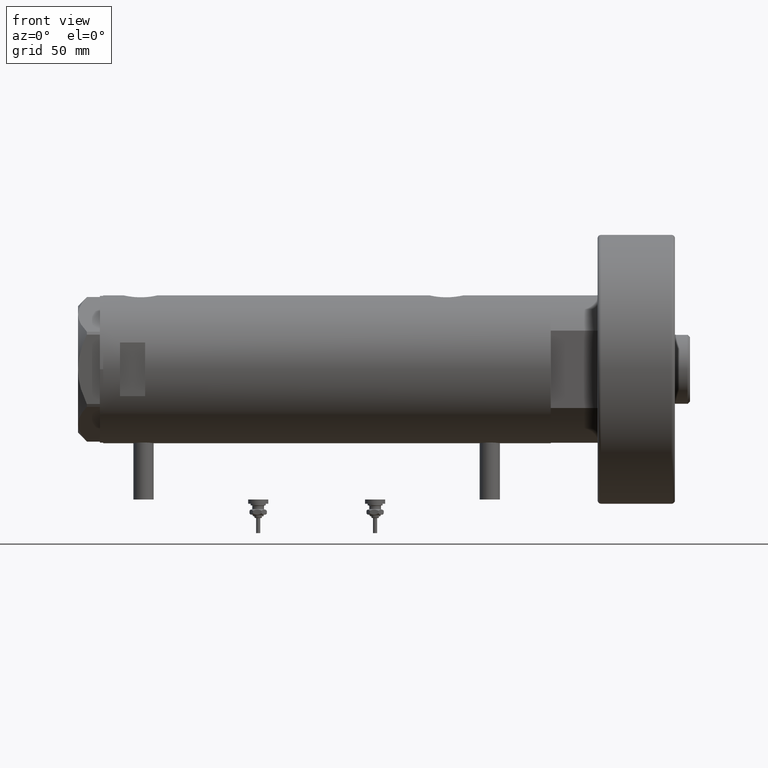
[diagram: clean part render]
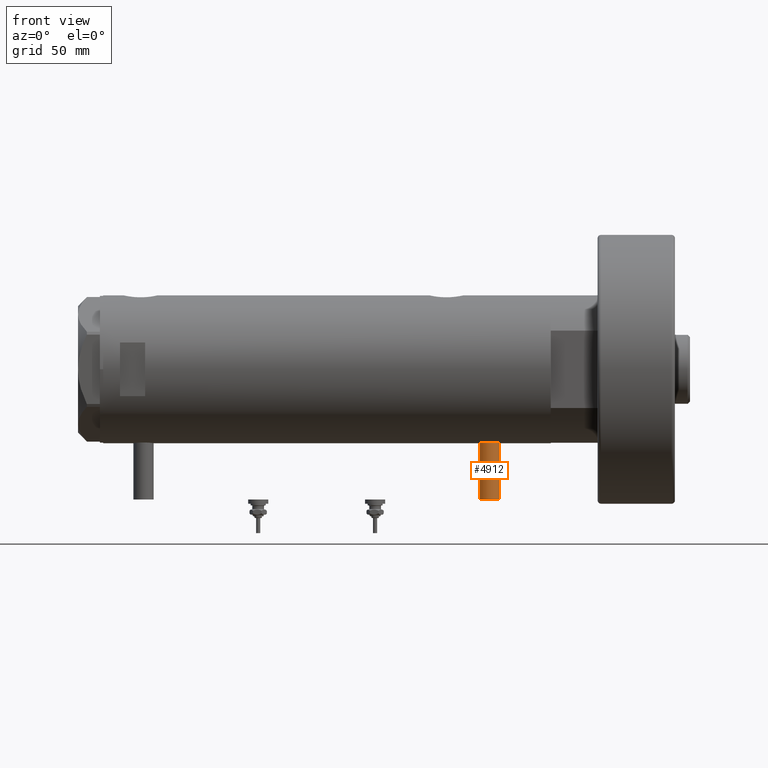
[diagram: same view with one face highlighted and labeled with its STEP entity id]
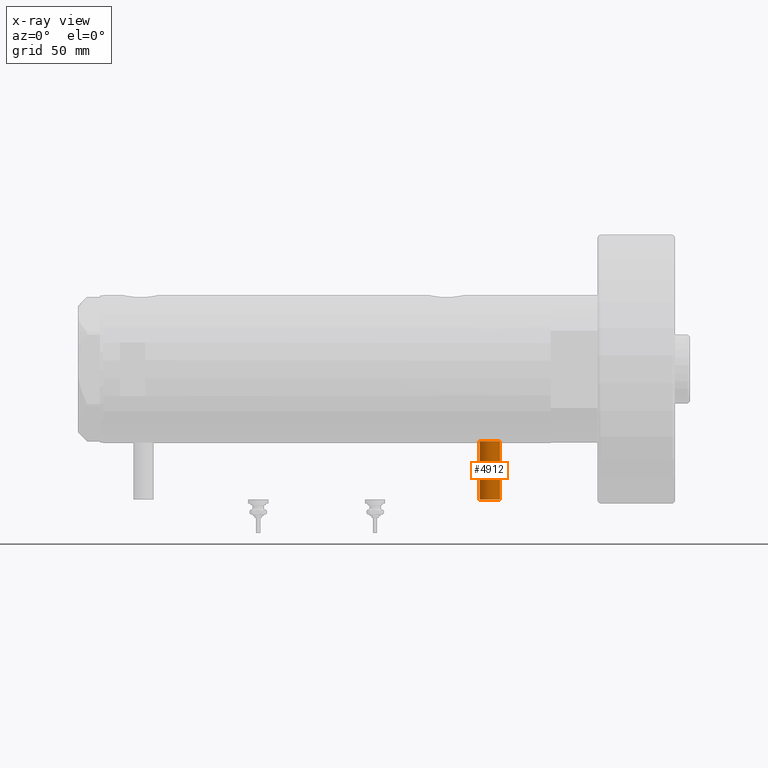
[diagram: x-ray of the same camera — body ghosted, the highlighted face saturated]
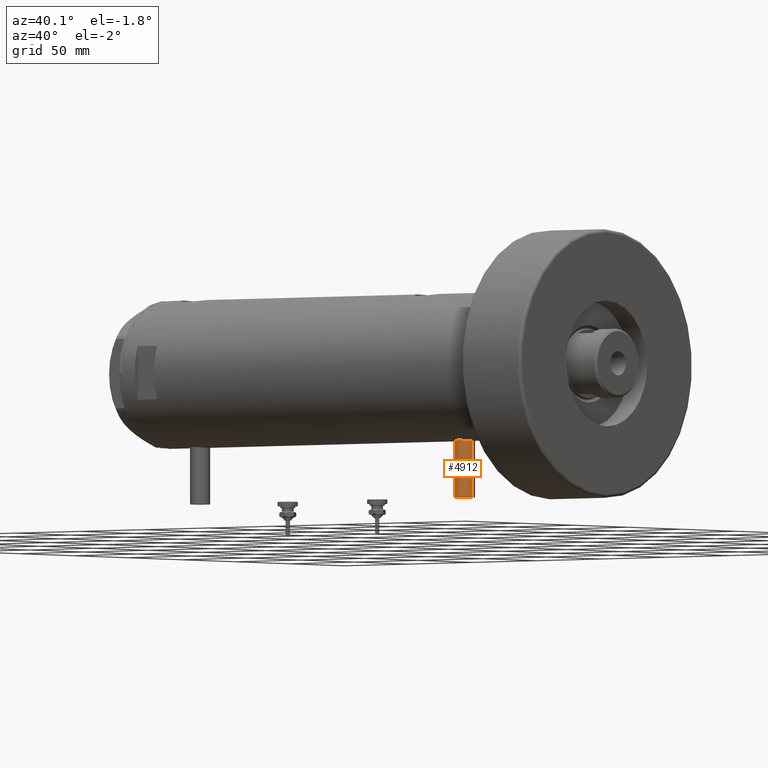
[diagram: same view with one face highlighted and labeled with its STEP entity id]
A machine part, front view. The second image highlights one B-rep face of the part: STEP entity #4912.
The next image is the same camera in x-ray: the body ghosted, the highlighted face saturated — about 0% of this face is hidden behind the body in this view.
A second angle (auxiliary view) of the same face is appended — the face is thin or edge-on in the first view.
In plain terms, the highlighted cylindrical surface (edge-blend (fillet) strip) has radius 6 mm, axis along (0, 0, 1).
Its self-contained STEP definition (entity closure, byte-faithful):
#332 = LINE ( 'NONE', #4249, #2797 ) ;
#393 = EDGE_CURVE ( 'NONE', #5778, #2032, #332, .T. ) ;
#424 = AXIS2_PLACEMENT_3D ( 'NONE', #2109, #2629, #4068 ) ;
#907 = FACE_OUTER_BOUND ( 'NONE', #6005, .T. ) ;
#1597 = CARTESIAN_POINT ( 'NONE',  ( -77.50000000000000000, 0.000000000000000000, -96.89999999999999147 ) ) ;
#1622 = CARTESIAN_POINT ( 'NONE',  ( -77.50000000000000000, 0.000000000000000000, -102.8999999999999915 ) ) ;
#1743 = ORIENTED_EDGE ( 'NONE', *, *, #393, .F. ) ;
#1809 = CYLINDRICAL_SURFACE ( 'NONE', #4221, 6.000000000000005329 ) ;
#2032 = VERTEX_POINT ( 'NONE', #5962 ) ;
#2109 = CARTESIAN_POINT ( 'NONE',  ( -42.79999999999999716, 0.000000000000000000, -96.89999999999999147 ) ) ;
#2629 = DIRECTION ( 'NONE',  ( -1.000000000000000000, 0.000000000000000000, 0.000000000000000000 ) ) ;
#2797 = VECTOR ( 'NONE', #4345, 1000.000000000000000 ) ;
#2866 = DIRECTION ( 'NONE',  ( 0.000000000000000000, 0.000000000000000000, -1.000000000000000000 ) ) ;
#3181 = CIRCLE ( 'NONE', #424, 6.000000000000005329 ) ;
#3217 = EDGE_CURVE ( 'NONE', #5800, #5081, #5004, .T. ) ;
#3294 = AXIS2_PLACEMENT_3D ( 'NONE', #1597, #5049, #5086 ) ;
#3508 = CARTESIAN_POINT ( 'NONE',  ( -42.79999999999999716, 0.000000000000000000, -102.8999999999999915 ) ) ;
#3560 = CARTESIAN_POINT ( 'NONE',  ( -77.50000000000000000, 7.347880794884119736E-16, -90.89999999999997726 ) ) ;
#3589 = ORIENTED_EDGE ( 'NONE', *, *, #4075, .F. ) ;
#3886 = CARTESIAN_POINT ( 'NONE',  ( -77.50000000000000000, 0.000000000000000000, -96.89999999999999147 ) ) ;
#4027 = ORIENTED_EDGE ( 'NONE', *, *, #4118, .T. ) ;
#4068 = DIRECTION ( 'NONE',  ( 0.000000000000000000, 0.000000000000000000, 1.000000000000000000 ) ) ;
#4075 = EDGE_CURVE ( 'NONE', #5800, #5778, #6090, .T. ) ;
#4118 = EDGE_CURVE ( 'NONE', #5081, #2032, #3181, .T. ) ;
#4221 = AXIS2_PLACEMENT_3D ( 'NONE', #3886, #6309, #2866 ) ;
#4249 = CARTESIAN_POINT ( 'NONE',  ( -77.50000000000000000, 7.347880794884122694E-16, -90.89999999999997726 ) ) ;
#4345 = DIRECTION ( 'NONE',  ( 1.000000000000000000, -0.000000000000000000, -0.000000000000000000 ) ) ;
#4448 = DIRECTION ( 'NONE',  ( 1.000000000000000000, -0.000000000000000000, -0.000000000000000000 ) ) ;
#4567 = ORIENTED_EDGE ( 'NONE', *, *, #3217, .T. ) ;
#4912 = ADVANCED_FACE ( 'NONE', ( #907 ), #1809, .T. ) ;
#4943 = CARTESIAN_POINT ( 'NONE',  ( -77.50000000000000000, 0.000000000000000000, -102.8999999999999915 ) ) ;
#5004 = LINE ( 'NONE', #4943, #5242 ) ;
#5049 = DIRECTION ( 'NONE',  ( -1.000000000000000000, 0.000000000000000000, 0.000000000000000000 ) ) ;
#5081 = VERTEX_POINT ( 'NONE', #3508 ) ;
#5086 = DIRECTION ( 'NONE',  ( 0.000000000000000000, 0.000000000000000000, 1.000000000000000000 ) ) ;
#5242 = VECTOR ( 'NONE', #4448, 1000.000000000000000 ) ;
#5778 = VERTEX_POINT ( 'NONE', #3560 ) ;
#5800 = VERTEX_POINT ( 'NONE', #1622 ) ;
#5962 = CARTESIAN_POINT ( 'NONE',  ( -42.79999999999999716, 7.347880794884119736E-16, -90.89999999999997726 ) ) ;
#6005 = EDGE_LOOP ( 'NONE', ( #1743, #3589, #4567, #4027 ) ) ;
#6090 = CIRCLE ( 'NONE', #3294, 6.000000000000005329 ) ;
#6309 = DIRECTION ( 'NONE',  ( 1.000000000000000000, -0.000000000000000000, -0.000000000000000000 ) ) ;